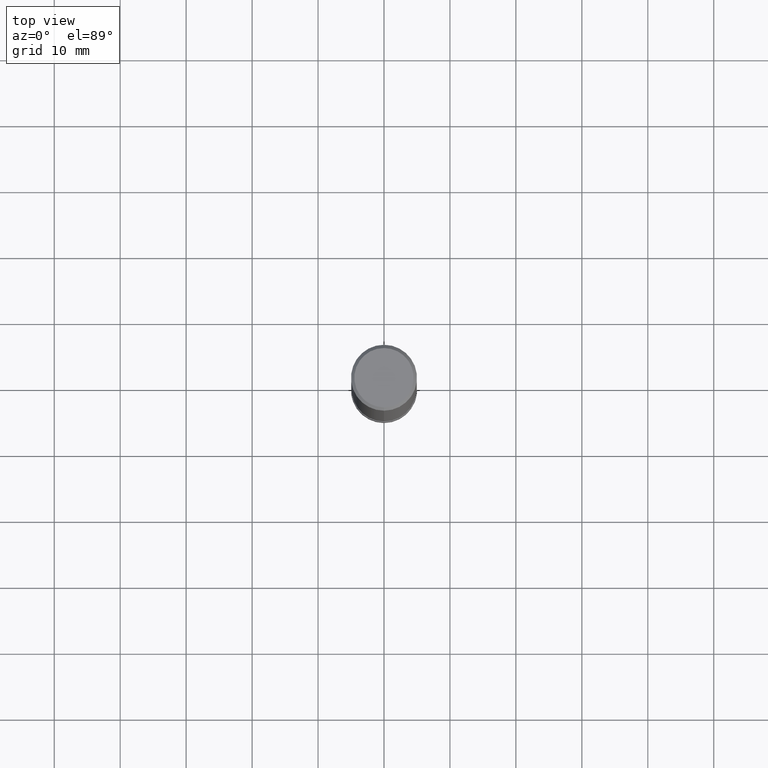
[diagram: clean part render]
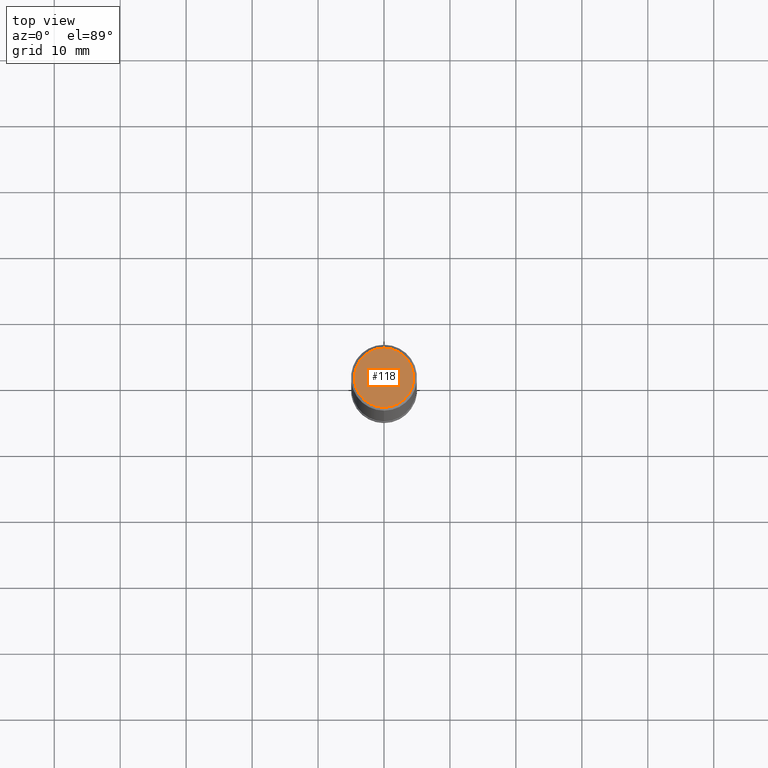
[diagram: same view with one face highlighted and labeled with its STEP entity id]
A machine part, top view. The second image highlights one B-rep face of the part: STEP entity #118.
In plain terms, the highlighted planar face has unit normal (-0, 0, 1).
Its self-contained STEP definition (entity closure, byte-faithful):
#94=EDGE_CURVE('',#186,#122,#231,.T.);
#118=ADVANCED_FACE('',(#258),#259,.T.);
#122=VERTEX_POINT('',#263);
#186=VERTEX_POINT('',#336);
#198=EDGE_CURVE('',#122,#186,#351,.T.);
#231=CIRCLE('',#377,4.5);
#258=FACE_OUTER_BOUND('',#409,.T.);
#259=PLANE('',#410);
#263=CARTESIAN_POINT('',(0.0,4.5,0.0));
#336=CARTESIAN_POINT('',(5.5107285922007E-016,-4.5,0.0));
#351=CIRCLE('',#520,4.5);
#377=AXIS2_PLACEMENT_3D('',#540,#541,#542);
#409=EDGE_LOOP('',(#576,#577));
#410=AXIS2_PLACEMENT_3D('',#578,#579,#580);
#520=AXIS2_PLACEMENT_3D('',#704,#705,#706);
#540=CARTESIAN_POINT('',(0.0,0.0,0.0));
#541=DIRECTION('',(0.0,0.0,-1.0));
#542=DIRECTION('',(0.0,1.0,0.0));
#576=ORIENTED_EDGE('',*,*,#198,.F.);
#577=ORIENTED_EDGE('',*,*,#94,.F.);
#578=CARTESIAN_POINT('',(0.0,2.25,0.0));
#579=DIRECTION('',(-0.0,0.0,1.0));
#580=DIRECTION('',(0.0,-1.0,0.0));
#704=CARTESIAN_POINT('',(0.0,0.0,0.0));
#705=DIRECTION('',(0.0,0.0,-1.0));
#706=DIRECTION('',(0.0,1.0,0.0));